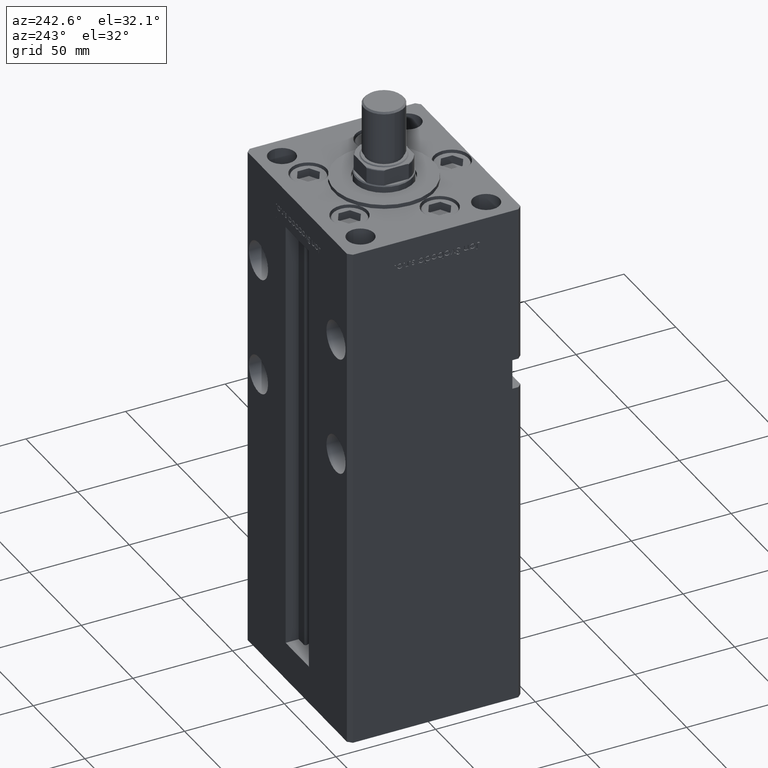
[diagram: clean part render]
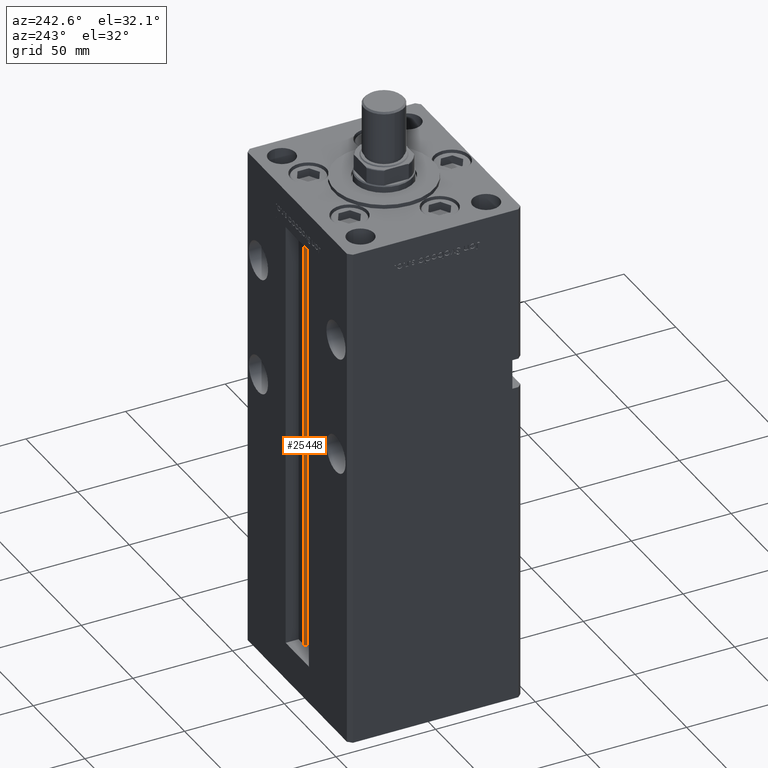
[diagram: same view with one face highlighted and labeled with its STEP entity id]
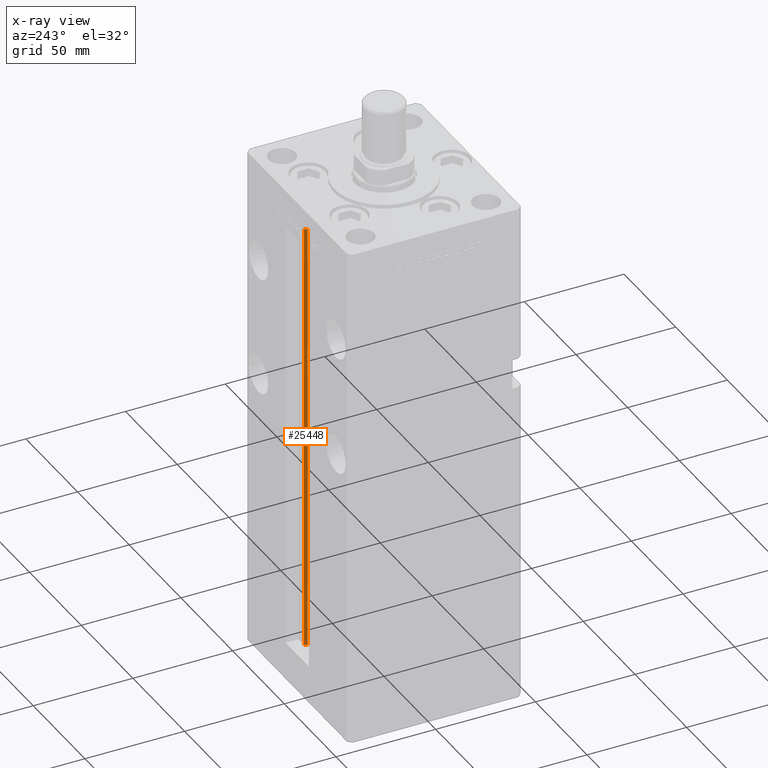
[diagram: x-ray of the same camera — body ghosted, the highlighted face saturated]
A machine part, auxiliary view. The second image highlights one B-rep face of the part: STEP entity #25448.
The next image is the same camera in x-ray: the body ghosted, the highlighted face saturated — about 0% of this face is hidden behind the body in this view.
In plain terms, the highlighted cylindrical surface (edge-blend (fillet) strip) has radius 0.9333 mm, axis along (0, 0, 1).
Its self-contained STEP definition (entity closure, byte-faithful):
#725 = EDGE_CURVE ( 'NONE', #45632, #11805, #52883, .T. ) ;
#1776 = LINE ( 'NONE', #50839, #25134 ) ;
#2693 = CARTESIAN_POINT ( 'NONE',  ( 6.183333333333996151, 37.00000000000000000, 0.000000000000000000 ) ) ;
#3538 = CIRCLE ( 'NONE', #52879, 0.9333333333339999260 ) ;
#5422 = EDGE_CURVE ( 'NONE', #14319, #17603, #3538, .T. ) ;
#5797 = CYLINDRICAL_SURFACE ( 'NONE', #7067, 0.9333333333339999260 ) ;
#7067 = AXIS2_PLACEMENT_3D ( 'NONE', #44479, #27958, #7341 ) ;
#7341 = DIRECTION ( 'NONE',  ( 1.000000000000000000, 0.000000000000000000, 0.000000000000000000 ) ) ;
#7670 = CARTESIAN_POINT ( 'NONE',  ( 5.375042956467944499, 35.59999999999899245, 0.000000000000000000 ) ) ;
#7837 = AXIS2_PLACEMENT_3D ( 'NONE', #35225, #14350, #14613 ) ;
#9376 = DIRECTION ( 'NONE',  ( -0.000000000000000000, -0.000000000000000000, 1.000000000000000000 ) ) ;
#9966 = CARTESIAN_POINT ( 'NONE',  ( 5.375042956467946276, 35.59999999999899245, 218.5000000000000000 ) ) ;
#10947 = DIRECTION ( 'NONE',  ( -0.000000000000000000, -0.000000000000000000, 1.000000000000000000 ) ) ;
#11805 = VERTEX_POINT ( 'NONE', #30540 ) ;
#14292 = ORIENTED_EDGE ( 'NONE', *, *, #5422, .F. ) ;
#14319 = VERTEX_POINT ( 'NONE', #21292 ) ;
#14327 = CARTESIAN_POINT ( 'NONE',  ( 6.183333333333996151, 36.06666666666599497, 0.000000000000000000 ) ) ;
#14350 = DIRECTION ( 'NONE',  ( 0.000000000000000000, 0.000000000000000000, -1.000000000000000000 ) ) ;
#14613 = DIRECTION ( 'NONE',  ( 1.000000000000000000, 0.000000000000000000, 0.000000000000000000 ) ) ;
#14866 = ORIENTED_EDGE ( 'NONE', *, *, #725, .T. ) ;
#17603 = VERTEX_POINT ( 'NONE', #2693 ) ;
#21292 = CARTESIAN_POINT ( 'NONE',  ( 5.375042956467944499, 35.59999999999899245, 0.000000000000000000 ) ) ;
#22469 = EDGE_CURVE ( 'NONE', #14319, #45632, #35633, .T. ) ;
#23466 = VECTOR ( 'NONE', #10947, 1000.000000000000000 ) ;
#25134 = VECTOR ( 'NONE', #9376, 1000.000000000000000 ) ;
#25448 = ADVANCED_FACE ( 'NONE', ( #47808 ), #5797, .T. ) ;
#27958 = DIRECTION ( 'NONE',  ( -0.000000000000000000, -0.000000000000000000, 1.000000000000000000 ) ) ;
#29180 = ORIENTED_EDGE ( 'NONE', *, *, #22469, .T. ) ;
#30540 = CARTESIAN_POINT ( 'NONE',  ( 6.183333333333996151, 37.00000000000000000, 218.5000000000000000 ) ) ;
#30862 = DIRECTION ( 'NONE',  ( 1.000000000000000000, 0.000000000000000000, 0.000000000000000000 ) ) ;
#31442 = ORIENTED_EDGE ( 'NONE', *, *, #50870, .F. ) ;
#35028 = EDGE_LOOP ( 'NONE', ( #31442, #14292, #29180, #14866 ) ) ;
#35225 = CARTESIAN_POINT ( 'NONE',  ( 6.183333333333996151, 36.06666666666599497, 218.5000000000000000 ) ) ;
#35633 = LINE ( 'NONE', #7670, #23466 ) ;
#44479 = CARTESIAN_POINT ( 'NONE',  ( 6.183333333333996151, 36.06666666666599497, 0.000000000000000000 ) ) ;
#45632 = VERTEX_POINT ( 'NONE', #9966 ) ;
#47808 = FACE_OUTER_BOUND ( 'NONE', #35028, .T. ) ;
#50839 = CARTESIAN_POINT ( 'NONE',  ( 6.183333333333996151, 37.00000000000000000, 0.000000000000000000 ) ) ;
#50870 = EDGE_CURVE ( 'NONE', #17603, #11805, #1776, .T. ) ;
#51718 = DIRECTION ( 'NONE',  ( -0.000000000000000000, -0.000000000000000000, -1.000000000000000000 ) ) ;
#52879 = AXIS2_PLACEMENT_3D ( 'NONE', #14327, #51718, #30862 ) ;
#52883 = CIRCLE ( 'NONE', #7837, 0.9333333333339999260 ) ;